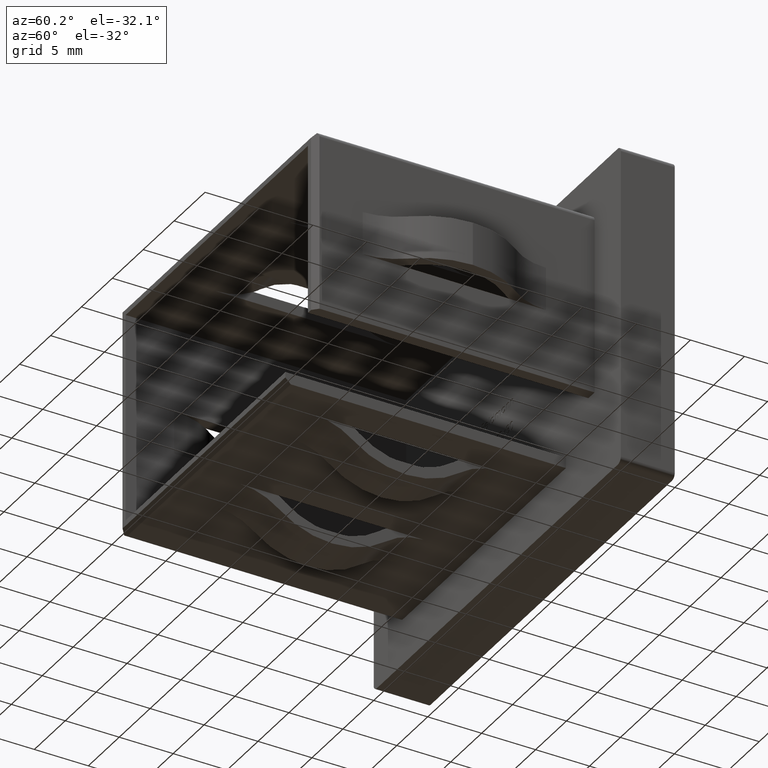
[diagram: clean part render]
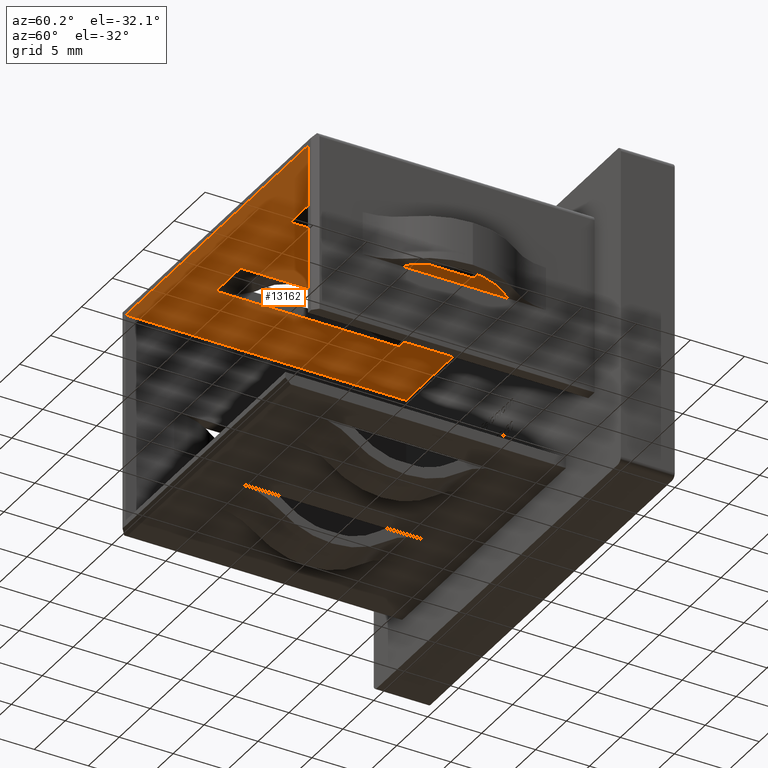
[diagram: same view with one face highlighted and labeled with its STEP entity id]
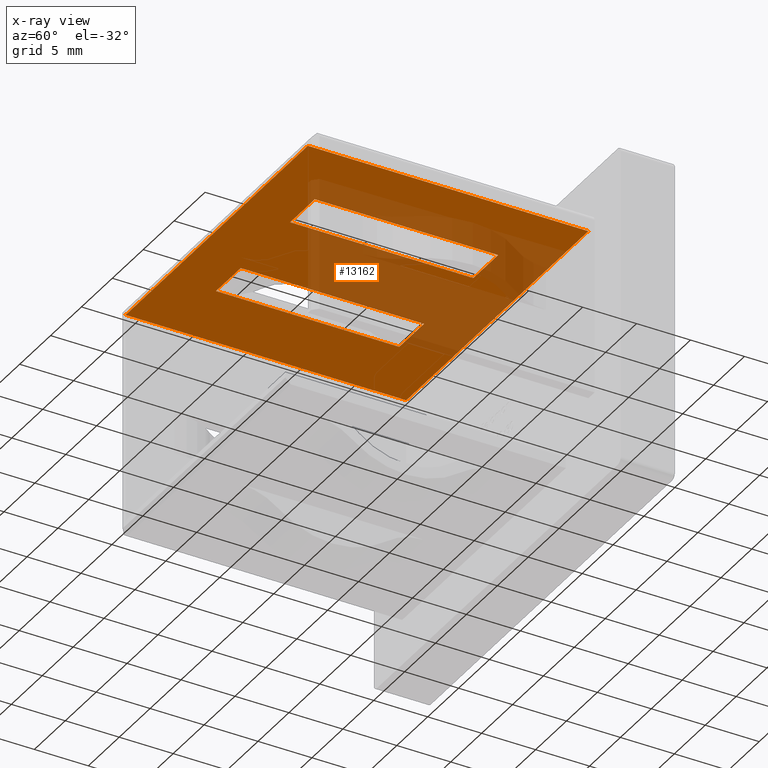
[diagram: x-ray of the same camera — body ghosted, the highlighted face saturated]
A machine part, auxiliary view. The second image highlights one B-rep face of the part: STEP entity #13162.
The next image is the same camera in x-ray: the body ghosted, the highlighted face saturated — about 37% of this face is hidden behind the body in this view.
In plain terms, the highlighted planar face has unit normal (-0, 0, 1).
Its self-contained STEP definition (entity closure, byte-faithful):
#204 = EDGE_LOOP ( 'NONE', ( #7131, #2398, #9800, #7915 ) ) ;
#221 = CARTESIAN_POINT ( 'NONE',  ( 8.000000000000001776, -21.50000000000000000, 9.749999999999991118 ) ) ;
#315 = CARTESIAN_POINT ( 'NONE',  ( 14.75000000000000000, -26.00000000000000000, 9.749999999999998224 ) ) ;
#578 = EDGE_CURVE ( 'NONE', #13282, #7902, #12640, .T. ) ;
#1085 = LINE ( 'NONE', #11178, #6841 ) ;
#1228 = VECTOR ( 'NONE', #10009, 1000.000000000000000 ) ;
#1277 = VERTEX_POINT ( 'NONE', #5905 ) ;
#1758 = ORIENTED_EDGE ( 'NONE', *, *, #578, .F. ) ;
#1785 = CARTESIAN_POINT ( 'NONE',  ( 4.000000000000001776, -8.954234412762644880E-15, 9.750000000000010658 ) ) ;
#2398 = ORIENTED_EDGE ( 'NONE', *, *, #9272, .F. ) ;
#2939 = EDGE_CURVE ( 'NONE', #5541, #13282, #14044, .T. ) ;
#3024 = VECTOR ( 'NONE', #11740, 1000.000000000000000 ) ;
#3056 = CARTESIAN_POINT ( 'NONE',  ( 14.75000000000000000, -26.00000000000000000, 9.749999999999998224 ) ) ;
#3109 = EDGE_LOOP ( 'NONE', ( #13716, #11062, #1758, #13648 ) ) ;
#3238 = ORIENTED_EDGE ( 'NONE', *, *, #6662, .T. ) ;
#3404 = DIRECTION ( 'NONE',  ( -1.176083712526648949E-16, 0.000000000000000000, 1.000000000000000000 ) ) ;
#3775 = VECTOR ( 'NONE', #10822, 1000.000000000000000 ) ;
#3840 = VERTEX_POINT ( 'NONE', #3973 ) ;
#3973 = CARTESIAN_POINT ( 'NONE',  ( 14.75000000000000000, 0.000000000000000000, 9.749999999999998224 ) ) ;
#4012 = VERTEX_POINT ( 'NONE', #8846 ) ;
#4126 = CARTESIAN_POINT ( 'NONE',  ( -3.999999999999998224, -21.50000000000000000, 9.749999999999992895 ) ) ;
#4215 = VERTEX_POINT ( 'NONE', #13943 ) ;
#4598 = VECTOR ( 'NONE', #14504, 1000.000000000000000 ) ;
#5014 = CARTESIAN_POINT ( 'NONE',  ( 4.000000000000001776, -4.499999999999995559, 9.750000000000007105 ) ) ;
#5541 = VERTEX_POINT ( 'NONE', #5653 ) ;
#5587 = FACE_BOUND ( 'NONE', #3109, .T. ) ;
#5653 = CARTESIAN_POINT ( 'NONE',  ( 4.000000000000001776, -4.499999999999995559, 9.750000000000007105 ) ) ;
#5810 = CARTESIAN_POINT ( 'NONE',  ( -7.999999999999996447, -21.50000000000000355, 9.749999999999994671 ) ) ;
#5811 = DIRECTION ( 'NONE',  ( 1.000000000000000000, -0.000000000000000000, 1.176083712526648949E-16 ) ) ;
#5905 = CARTESIAN_POINT ( 'NONE',  ( -14.75000000000000000, -26.00000000000000000, 9.749999999999994671 ) ) ;
#6164 = DIRECTION ( 'NONE',  ( 1.000000000000000000, -0.000000000000000000, -1.927470528863118802E-16 ) ) ;
#6188 = VERTEX_POINT ( 'NONE', #6750 ) ;
#6522 = DIRECTION ( 'NONE',  ( -0.000000000000000000, 1.000000000000000000, -0.000000000000000000 ) ) ;
#6565 = VERTEX_POINT ( 'NONE', #4126 ) ;
#6642 = LINE ( 'NONE', #1785, #6992 ) ;
#6662 = EDGE_CURVE ( 'NONE', #6188, #9787, #14828, .T. ) ;
#6750 = CARTESIAN_POINT ( 'NONE',  ( -3.999999999999998224, -4.499999999999995559, 9.750000000000008882 ) ) ;
#6832 = EDGE_LOOP ( 'NONE', ( #13543, #3238, #13775, #8536 ) ) ;
#6841 = VECTOR ( 'NONE', #12502, 1000.000000000000000 ) ;
#6992 = VECTOR ( 'NONE', #9922, 1000.000000000000000 ) ;
#7131 = ORIENTED_EDGE ( 'NONE', *, *, #9821, .T. ) ;
#7216 = CARTESIAN_POINT ( 'NONE',  ( -14.75000000000000000, -26.00000000000000000, 9.749999999999994671 ) ) ;
#7356 = CARTESIAN_POINT ( 'NONE',  ( -3.999999999999998224, -4.499999999999995559, 9.750000000000008882 ) ) ;
#7495 = VECTOR ( 'NONE', #5811, 1000.000000000000000 ) ;
#7588 = VECTOR ( 'NONE', #10429, 1000.000000000000000 ) ;
#7788 = EDGE_CURVE ( 'NONE', #6565, #11855, #10984, .T. ) ;
#7902 = VERTEX_POINT ( 'NONE', #221 ) ;
#7915 = ORIENTED_EDGE ( 'NONE', *, *, #8123, .T. ) ;
#7939 = PLANE ( 'NONE',  #8004 ) ;
#8004 = AXIS2_PLACEMENT_3D ( 'NONE', #9141, #3404, #12519 ) ;
#8042 = VECTOR ( 'NONE', #6164, 1000.000000000000000 ) ;
#8099 = CARTESIAN_POINT ( 'NONE',  ( -7.999999999999998224, -8.954234412762644880E-15, 9.750000000000012434 ) ) ;
#8123 = EDGE_CURVE ( 'NONE', #1277, #14039, #14615, .T. ) ;
#8536 = ORIENTED_EDGE ( 'NONE', *, *, #7788, .F. ) ;
#8840 = DIRECTION ( 'NONE',  ( -0.000000000000000000, 1.000000000000000000, -0.000000000000000000 ) ) ;
#8846 = CARTESIAN_POINT ( 'NONE',  ( 14.75000000000000000, -26.00000000000000000, 9.749999999999998224 ) ) ;
#9141 = CARTESIAN_POINT ( 'NONE',  ( 14.75000000000000000, -26.00000000000000000, 9.749999999999998224 ) ) ;
#9272 = EDGE_CURVE ( 'NONE', #4012, #3840, #10758, .T. ) ;
#9644 = LINE ( 'NONE', #12343, #4598 ) ;
#9787 = VERTEX_POINT ( 'NONE', #11650 ) ;
#9800 = ORIENTED_EDGE ( 'NONE', *, *, #10990, .F. ) ;
#9821 = EDGE_CURVE ( 'NONE', #14039, #3840, #12956, .T. ) ;
#9852 = VECTOR ( 'NONE', #6522, 1000.000000000000000 ) ;
#9922 = DIRECTION ( 'NONE',  ( -1.829988542366726512E-31, -1.000000000000000000, -9.183830166936035006E-16 ) ) ;
#10009 = DIRECTION ( 'NONE',  ( -1.829988542366726512E-31, -1.000000000000000000, -9.183830166936035006E-16 ) ) ;
#10429 = DIRECTION ( 'NONE',  ( -1.710323855403926342E-31, -1.000000000000000000, -9.183830166936035006E-16 ) ) ;
#10482 = FACE_BOUND ( 'NONE', #6832, .T. ) ;
#10606 = CARTESIAN_POINT ( 'NONE',  ( 8.000000000000001776, -4.499999999999997335, 9.749999999999998224 ) ) ;
#10712 = EDGE_CURVE ( 'NONE', #6188, #6565, #9644, .T. ) ;
#10758 = LINE ( 'NONE', #3056, #9852 ) ;
#10822 = DIRECTION ( 'NONE',  ( -1.000000000000000000, -0.000000000000000000, 1.927470528863118802E-16 ) ) ;
#10984 = LINE ( 'NONE', #12003, #3024 ) ;
#10990 = EDGE_CURVE ( 'NONE', #1277, #4012, #11943, .T. ) ;
#11062 = ORIENTED_EDGE ( 'NONE', *, *, #13645, .T. ) ;
#11178 = CARTESIAN_POINT ( 'NONE',  ( 4.000000000000001776, -21.50000000000000000, 9.749999999999991118 ) ) ;
#11203 = CARTESIAN_POINT ( 'NONE',  ( 8.000000000000001776, -8.954234412762644880E-15, 9.750000000000010658 ) ) ;
#11404 = FACE_OUTER_BOUND ( 'NONE', #204, .T. ) ;
#11650 = CARTESIAN_POINT ( 'NONE',  ( -7.999999999999998224, -4.499999999999995559, 9.750000000000008882 ) ) ;
#11740 = DIRECTION ( 'NONE',  ( -1.000000000000000000, -0.000000000000000000, 1.927470528863118802E-16 ) ) ;
#11846 = CARTESIAN_POINT ( 'NONE',  ( 14.75000000000000000, 0.000000000000000000, 9.749999999999998224 ) ) ;
#11855 = VERTEX_POINT ( 'NONE', #5810 ) ;
#11894 = EDGE_CURVE ( 'NONE', #9787, #11855, #13783, .T. ) ;
#11943 = LINE ( 'NONE', #315, #13768 ) ;
#12003 = CARTESIAN_POINT ( 'NONE',  ( -3.999999999999998224, -21.50000000000000000, 9.749999999999992895 ) ) ;
#12132 = CARTESIAN_POINT ( 'NONE',  ( -14.75000000000000000, 0.000000000000000000, 9.749999999999994671 ) ) ;
#12343 = CARTESIAN_POINT ( 'NONE',  ( -3.999999999999998224, -8.954234412762644880E-15, 9.750000000000012434 ) ) ;
#12502 = DIRECTION ( 'NONE',  ( 1.000000000000000000, -0.000000000000000000, -1.927470528863118802E-16 ) ) ;
#12519 = DIRECTION ( 'NONE',  ( 1.000000000000000000, 0.000000000000000000, 1.176083712526648949E-16 ) ) ;
#12640 = LINE ( 'NONE', #11203, #1228 ) ;
#12956 = LINE ( 'NONE', #11846, #7495 ) ;
#13162 = ADVANCED_FACE ( 'NONE', ( #5587, #11404, #10482 ), #7939, .F. ) ;
#13282 = VERTEX_POINT ( 'NONE', #10606 ) ;
#13543 = ORIENTED_EDGE ( 'NONE', *, *, #10712, .F. ) ;
#13645 = EDGE_CURVE ( 'NONE', #4215, #7902, #1085, .T. ) ;
#13648 = ORIENTED_EDGE ( 'NONE', *, *, #2939, .F. ) ;
#13716 = ORIENTED_EDGE ( 'NONE', *, *, #15001, .T. ) ;
#13768 = VECTOR ( 'NONE', #14013, 1000.000000000000000 ) ;
#13775 = ORIENTED_EDGE ( 'NONE', *, *, #11894, .T. ) ;
#13783 = LINE ( 'NONE', #8099, #7588 ) ;
#13943 = CARTESIAN_POINT ( 'NONE',  ( 4.000000000000001776, -21.50000000000000000, 9.749999999999991118 ) ) ;
#14013 = DIRECTION ( 'NONE',  ( 1.000000000000000000, -0.000000000000000000, 1.176083712526648949E-16 ) ) ;
#14039 = VERTEX_POINT ( 'NONE', #12132 ) ;
#14044 = LINE ( 'NONE', #5014, #8042 ) ;
#14443 = VECTOR ( 'NONE', #8840, 1000.000000000000000 ) ;
#14504 = DIRECTION ( 'NONE',  ( -1.710323855403926342E-31, -1.000000000000000000, -9.183830166936035006E-16 ) ) ;
#14615 = LINE ( 'NONE', #7216, #14443 ) ;
#14828 = LINE ( 'NONE', #7356, #3775 ) ;
#15001 = EDGE_CURVE ( 'NONE', #5541, #4215, #6642, .T. ) ;